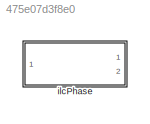
MODEL slx_475e07d3f8e0
KIND library
CONFIG AbsTol = auto
CONFIG EnableMultiTasking = off
CONFIG FixedStep = auto
CONFIG MaxStep = auto
CONFIG MinStep = auto
CONFIG RelTol = 1e-3
CONFIG SampleTimeConstraint = Unconstrained
CONFIG Solver = VariableStepAuto
CONFIG SolverName = VariableStepAuto
CONFIG StartTime = 0.0
CONFIG StopTime = 10.0
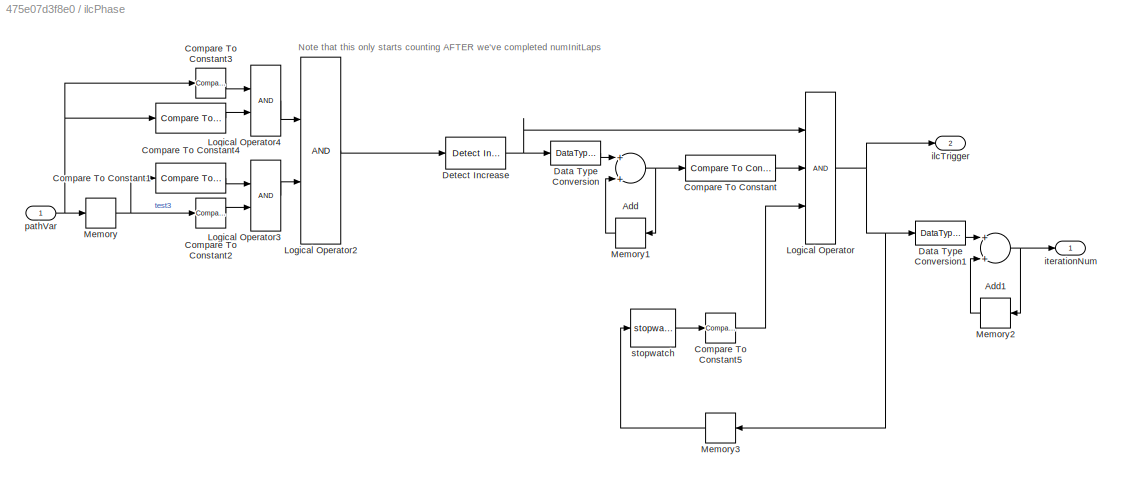
BLOCK [SubSystem] ilcPhase
  MinAlgLoopOccurrences = on
  Ports = [1, 2]
  RequestExecContextInheritance = off
  TreatAsAtomicUnit = on
BLOCK [Sum] ilcPhase/Add
  InputSameDT = off
  OutDataTypeStr = Inherit: Inherit via internal rule
  Ports = [2, 1]
  SaturateOnIntegerOverflow = off
BLOCK [Sum] ilcPhase/Add1
  InputSameDT = off
  OutDataTypeStr = Inherit: Inherit via internal rule
  Ports = [2, 1]
  SaturateOnIntegerOverflow = off
BLOCK [Reference] ilcPhase/Compare To Constant  REF=simulink/Logic and Bit
Operations/Compare
To Constant
  Ports = [1, 1]
  SourceBlock = simulink/Logic and Bit\nOperations/Compare\nTo Constant
  SourceProductBaseCode = SL
  SourceProductName = Simulink
  SourceType = Compare To Constant
BLOCK [Reference] ilcPhase/Compare To Constant1  REF=simulink/Logic and Bit
Operations/Compare
To Constant
  Ports = [1, 1]
  SourceBlock = simulink/Logic and Bit\nOperations/Compare\nTo Constant
  SourceProductBaseCode = SL
  SourceProductName = Simulink
  SourceType = Compare To Constant
BLOCK [Reference] ilcPhase/Compare To Constant2  REF=simulink/Logic and Bit
Operations/Compare
To Constant
  Ports = [1, 1]
  SourceBlock = simulink/Logic and Bit\nOperations/Compare\nTo Constant
  SourceProductBaseCode = SL
  SourceProductName = Simulink
  SourceType = Compare To Constant
BLOCK [Reference] ilcPhase/Compare To Constant3  REF=simulink/Logic and Bit
Operations/Compare
To Constant
  Ports = [1, 1]
  SourceBlock = simulink/Logic and Bit\nOperations/Compare\nTo Constant
  SourceProductBaseCode = SL
  SourceProductName = Simulink
  SourceType = Compare To Constant
BLOCK [Reference] ilcPhase/Compare To Constant4  REF=simulink/Logic and Bit
Operations/Compare
To Constant
  Ports = [1, 1]
  SourceBlock = simulink/Logic and Bit\nOperations/Compare\nTo Constant
  SourceProductBaseCode = SL
  SourceProductName = Simulink
  SourceType = Compare To Constant
BLOCK [Reference] ilcPhase/Compare To Constant5  REF=simulink/Logic and Bit
Operations/Compare
To Constant
  Ports = [1, 1]
  SourceBlock = simulink/Logic and Bit\nOperations/Compare\nTo Constant
  SourceProductBaseCode = SL
  SourceProductName = Simulink
  SourceType = Compare To Constant
BLOCK [DataTypeConversion] ilcPhase/Data Type Conversion
  OutDataTypeStr = double
  RndMeth = Floor
  SaturateOnIntegerOverflow = off
BLOCK [DataTypeConversion] ilcPhase/Data Type Conversion1
  OutDataTypeStr = double
  RndMeth = Floor
  SaturateOnIntegerOverflow = off
BLOCK [Reference] ilcPhase/Detect Increase  REF=simulink/Logic and Bit
Operations/Detect
Increase
  Ports = [1, 1]
  SourceBlock = simulink/Logic and Bit\nOperations/Detect\nIncrease
  SourceProductBaseCode = SL
  SourceProductName = Simulink
  SourceType = Detect Increase
BLOCK [Logic] ilcPhase/Logical Operator
  AllPortsSameDT = off
  Inputs = 3
  OutDataTypeStr = boolean
  Ports = [3, 1]
BLOCK [Logic] ilcPhase/Logical Operator2
  AllPortsSameDT = off
  OutDataTypeStr = boolean
  Ports = [2, 1]
BLOCK [Logic] ilcPhase/Logical Operator3
  AllPortsSameDT = off
  OutDataTypeStr = boolean
  Ports = [2, 1]
BLOCK [Logic] ilcPhase/Logical Operator4
  AllPortsSameDT = off
  OutDataTypeStr = boolean
  Ports = [2, 1]
BLOCK [Memory] ilcPhase/Memory
  InheritSampleTime = on
BLOCK [Memory] ilcPhase/Memory1
  InheritSampleTime = on
BLOCK [Memory] ilcPhase/Memory2
  InheritSampleTime = on
BLOCK [Memory] ilcPhase/Memory3
  InitialCondition = false
BLOCK [Outport] ilcPhase/ilcTrigger
  IconDisplay = Port number
  Port = 2
BLOCK [Outport] ilcPhase/iterationNum
  IconDisplay = Port number
BLOCK [Inport] ilcPhase/pathVar
  IconDisplay = Port number
BLOCK [Reference] ilcPhase/stopwatch  REF=stopwatch_ul/stopwatch  (lib defined in slx_5231e8830116, slx_6b86a6863970)
  Ports = [1, 1]
  SourceBlock = stopwatch_ul/stopwatch
  SourceType = SubSystem
ANNOTATION ilcPhase: Note that this only starts counting AFTER we've completed numInitLaps
NET ilcPhase/Add1:1 -> ilcPhase/Memory2:1, ilcPhase/iterationNum:1
NET ilcPhase/Add:1 -> ilcPhase/Compare To Constant:1, ilcPhase/Memory1:1
LINE ilcPhase/Compare To Constant1:1 -> ilcPhase/Logical Operator3:1
LINE ilcPhase/Compare To Constant2:1 -> ilcPhase/Logical Operator3:2
LINE ilcPhase/Compare To Constant3:1 -> ilcPhase/Logical Operator4:1
LINE ilcPhase/Compare To Constant4:1 -> ilcPhase/Logical Operator4:2
LINE ilcPhase/Compare To Constant5:1 -> ilcPhase/Logical Operator:3
LINE ilcPhase/Compare To Constant:1 -> ilcPhase/Logical Operator:2
LINE ilcPhase/Data Type Conversion1:1 -> ilcPhase/Add1:1
LINE ilcPhase/Data Type Conversion:1 -> ilcPhase/Add:1
NET ilcPhase/Detect Increase:1 -> ilcPhase/Data Type Conversion:1, ilcPhase/Logical Operator:1
LINE ilcPhase/Logical Operator2:1 -> ilcPhase/Detect Increase:1
LINE ilcPhase/Logical Operator3:1 -> ilcPhase/Logical Operator2:2
LINE ilcPhase/Logical Operator4:1 -> ilcPhase/Logical Operator2:1
NET ilcPhase/Logical Operator:1 -> ilcPhase/Data Type Conversion1:1, ilcPhase/Memory3:1, ilcPhase/ilcTrigger:1
LINE ilcPhase/Memory1:1 -> ilcPhase/Add:2
LINE ilcPhase/Memory2:1 -> ilcPhase/Add1:2
LINE ilcPhase/Memory3:1 -> ilcPhase/stopwatch:1
NET ilcPhase/Memory:1 -> ilcPhase/Compare To Constant1:1, ilcPhase/Compare To Constant2:1
NET ilcPhase/pathVar:1 -> ilcPhase/Compare To Constant3:1, ilcPhase/Compare To Constant4:1, ilcPhase/Memory:1
LINE ilcPhase/stopwatch:1 -> ilcPhase/Compare To Constant5:1
note: NET lines group one-source signal fan-out (src -> all destinations, sorted); 1:1 wires keep LINE
